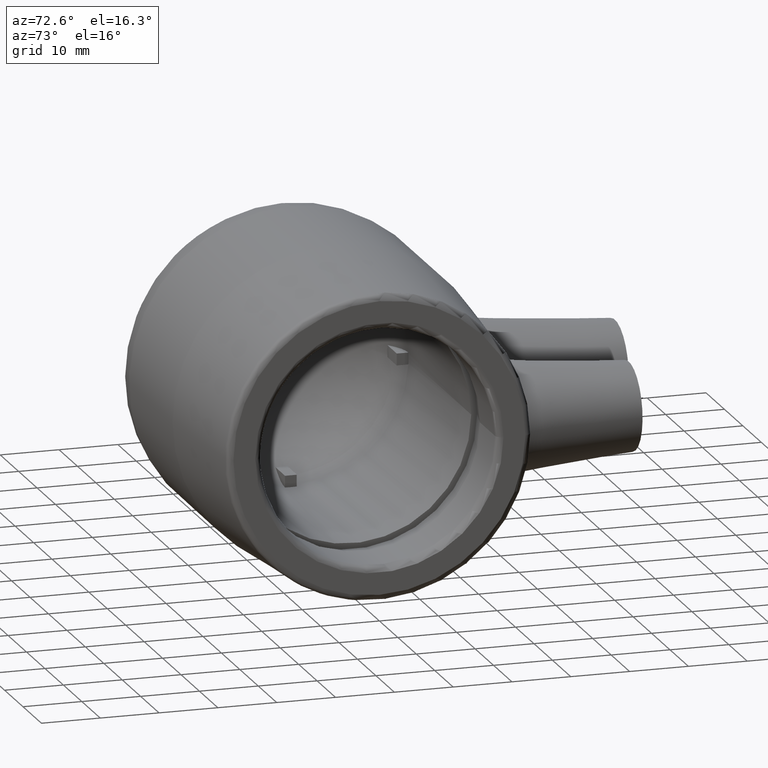
[diagram: clean part render]
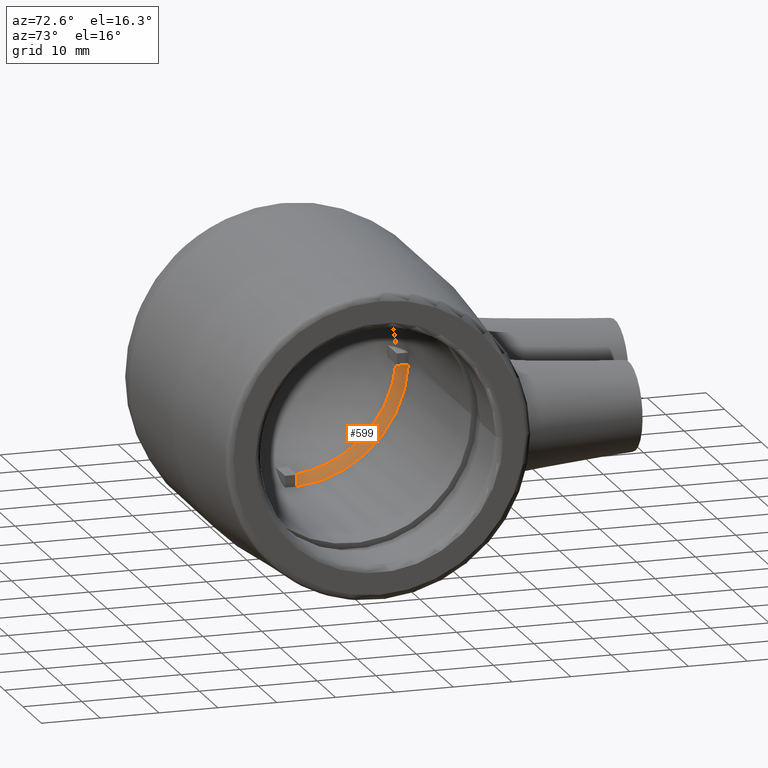
[diagram: same view with one face highlighted and labeled with its STEP entity id]
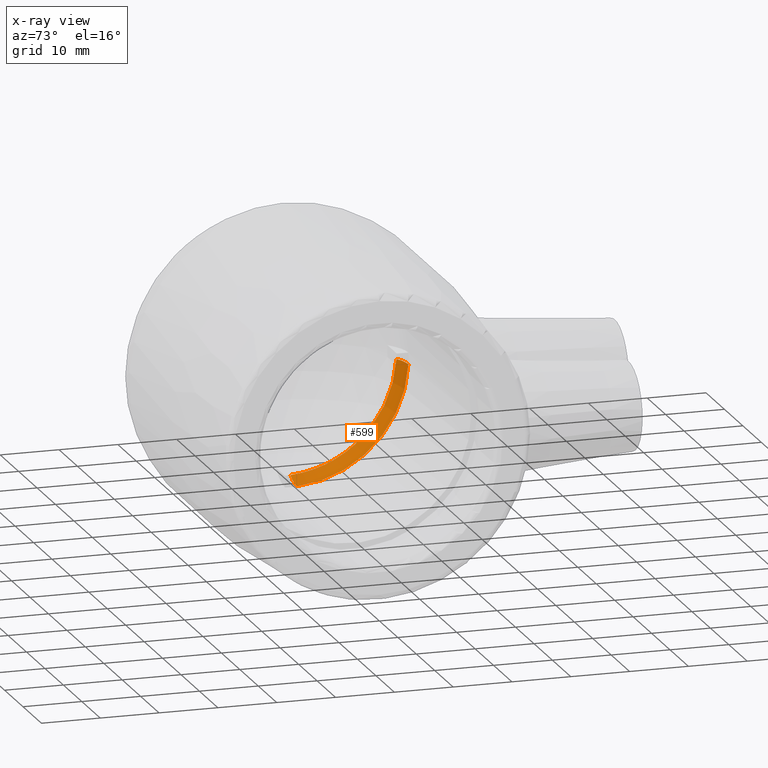
[diagram: x-ray of the same camera — body ghosted, the highlighted face saturated]
A machine part, auxiliary view. The second image highlights one B-rep face of the part: STEP entity #599.
The next image is the same camera in x-ray: the body ghosted, the highlighted face saturated — about 0% of this face is hidden behind the body in this view.
In plain terms, the highlighted toroidal blend (fillet) surface has major radius 13 mm and minor (blend) radius 7 mm.
Its self-contained STEP definition (entity closure, byte-faithful):
#51=TOROIDAL_SURFACE('',#668,13.,7.);
#62=B_SPLINE_CURVE_WITH_KNOTS('',3,(#997,#998,#999,#1000,#1001,#1002,#1003,
#1004),.UNSPECIFIED.,.F.,.F.,(4,2,2,4),(0.,0.129514623369228,0.259029246738456,
0.34707264251136),.UNSPECIFIED.);
#63=B_SPLINE_CURVE_WITH_KNOTS('',3,(#1017,#1018,#1019,#1020,#1021,#1022,
#1023,#1024),.UNSPECIFIED.,.F.,.F.,(4,2,2,4),(-0.347072642511362,-0.259029246738456,
-0.129514623369229,0.),.UNSPECIFIED.);
#125=FACE_OUTER_BOUND('',#170,.T.);
#170=EDGE_LOOP('',(#473,#474,#475,#476));
#240=CIRCLE('',#664,19.0599334073252);
#243=CIRCLE('',#669,20.);
#278=VERTEX_POINT('',#970);
#285=VERTEX_POINT('',#996);
#287=VERTEX_POINT('',#1008);
#290=VERTEX_POINT('',#1016);
#347=EDGE_CURVE('',#278,#285,#62,.T.);
#353=EDGE_CURVE('',#290,#287,#63,.T.);
#365=EDGE_CURVE('',#290,#285,#240,.T.);
#369=EDGE_CURVE('',#287,#278,#243,.T.);
#473=ORIENTED_EDGE('',*,*,#347,.T.);
#474=ORIENTED_EDGE('',*,*,#365,.F.);
#475=ORIENTED_EDGE('',*,*,#353,.T.);
#476=ORIENTED_EDGE('',*,*,#369,.T.);
#599=ADVANCED_FACE('',(#125),#51,.F.);
#664=AXIS2_PLACEMENT_3D('',#1053,#806,#807);
#668=AXIS2_PLACEMENT_3D('',#1066,#814,#815);
#669=AXIS2_PLACEMENT_3D('',#1067,#816,#817);
#806=DIRECTION('center_axis',(1.,2.83384649210207E-19,0.));
#807=DIRECTION('ref_axis',(0.,0.,-1.));
#814=DIRECTION('center_axis',(1.,2.83384649210207E-19,0.));
#815=DIRECTION('ref_axis',(0.,0.,-1.));
#816=DIRECTION('center_axis',(1.,2.83384649210207E-19,0.));
#817=DIRECTION('ref_axis',(0.,0.,-1.));
#970=CARTESIAN_POINT('',(-48.,19.9749843554382,-1.));
#996=CARTESIAN_POINT('',(-51.503884572697,19.0336822893435,-1.));
#997=CARTESIAN_POINT('Ctrl Pts',(-48.,19.9749843554382,-1.));
#998=CARTESIAN_POINT('Ctrl Pts',(-48.4317154112308,19.9749843554382,-1.));
#999=CARTESIAN_POINT('Ctrl Pts',(-48.9031994603803,19.9323591703308,-1.));
#1000=CARTESIAN_POINT('Ctrl Pts',(-49.8265540132172,19.7485651499687,-1.));
#1001=CARTESIAN_POINT('Ctrl Pts',(-50.2784246665355,19.6073970664398,-1.));
#1002=CARTESIAN_POINT('Ctrl Pts',(-50.9483526266835,19.3297246128762,-1.));
#1003=CARTESIAN_POINT('Ctrl Pts',(-51.2292260217304,19.1927103002267,-1.));
#1004=CARTESIAN_POINT('Ctrl Pts',(-51.503884572697,19.0336822893436,-1.));
#1008=CARTESIAN_POINT('',(-48.,0.999999999999999,-19.9749843554382));
#1016=CARTESIAN_POINT('',(-51.503884572697,0.999999999999999,-19.0336822893435));
#1017=CARTESIAN_POINT('Ctrl Pts',(-51.503884572697,0.999999999999999,-19.0336822893436));
#1018=CARTESIAN_POINT('Ctrl Pts',(-51.2292260217304,0.999999999999999,-19.1927103002267));
#1019=CARTESIAN_POINT('Ctrl Pts',(-50.9483526266836,0.999999999999999,-19.3297246128762));
#1020=CARTESIAN_POINT('Ctrl Pts',(-50.2784246665355,0.999999999999999,-19.6073970664398));
#1021=CARTESIAN_POINT('Ctrl Pts',(-49.8265540132172,0.999999999999999,-19.7485651499687));
#1022=CARTESIAN_POINT('Ctrl Pts',(-48.9031994603803,0.999999999999999,-19.9323591703308));
#1023=CARTESIAN_POINT('Ctrl Pts',(-48.4317154112308,0.999999999999999,-19.9749843554382));
#1024=CARTESIAN_POINT('Ctrl Pts',(-48.,0.999999999999999,-19.9749843554382));
#1053=CARTESIAN_POINT('Origin',(-51.503884572697,-1.45954102625967E-17,
0.));
#1066=CARTESIAN_POINT('Origin',(-48.,-1.360246316209E-17,0.));
#1067=CARTESIAN_POINT('Origin',(-48.,-1.360246316209E-17,0.));